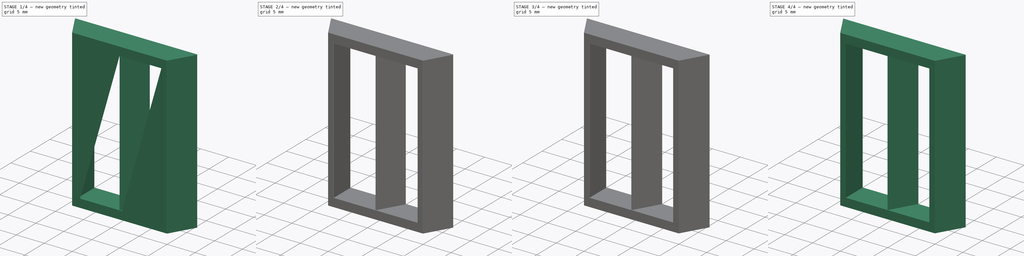
[diagram: build sequence overview — one tinted view per stage of 4, left to right]
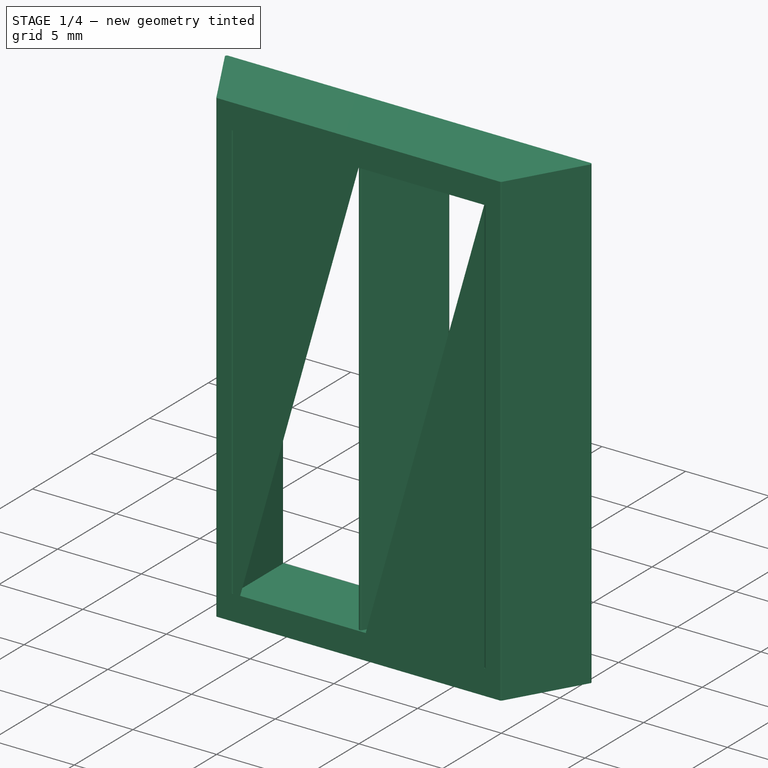
[diagram: stage 1 of 4 — iso view after this stage's code; geometry added in this stage tinted green]
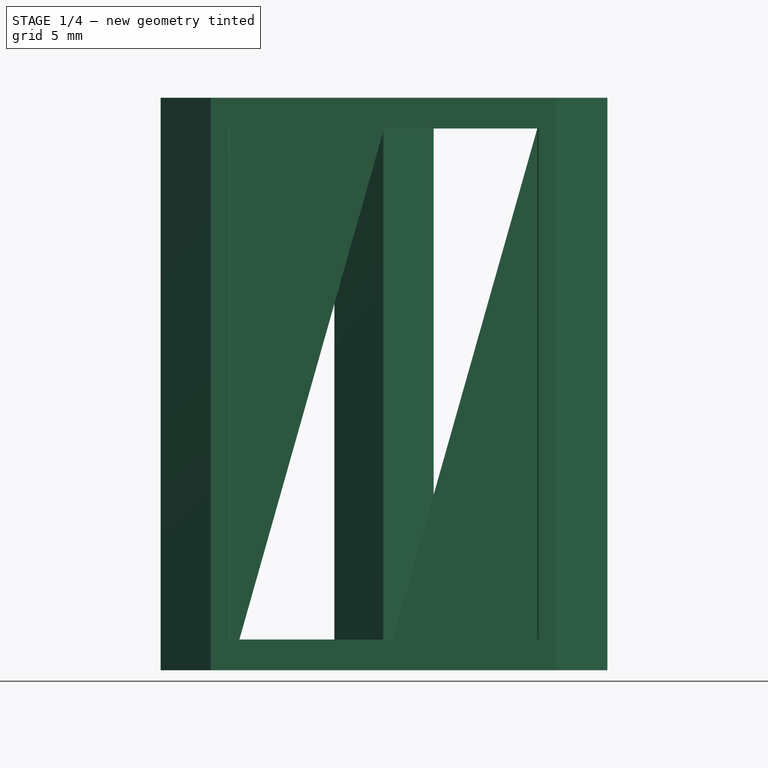
[diagram: stage 1 of 4 — front view after this stage's code; geometry added in this stage tinted green]
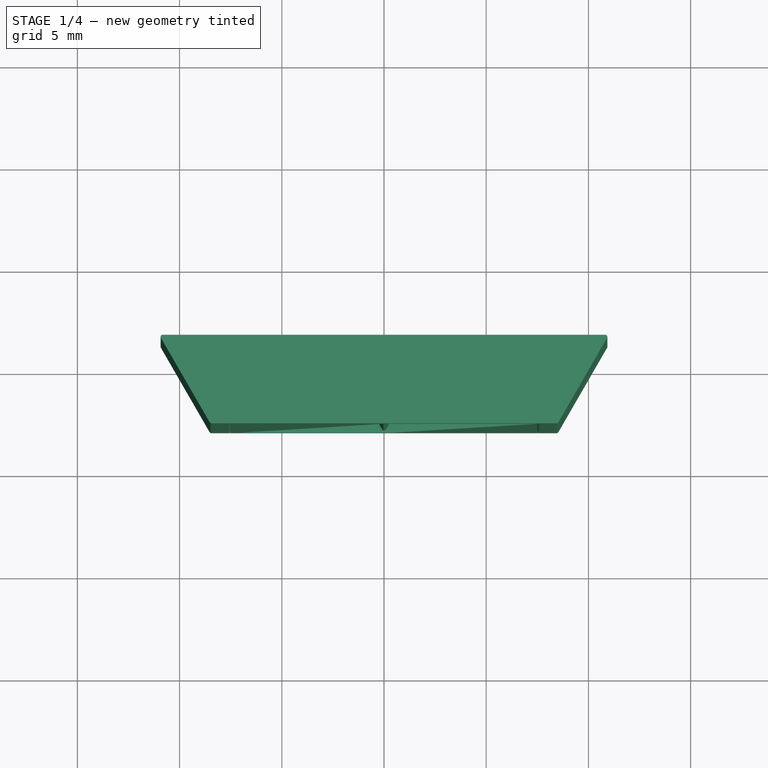
[diagram: stage 1 of 4 — top view after this stage's code; geometry added in this stage tinted green]
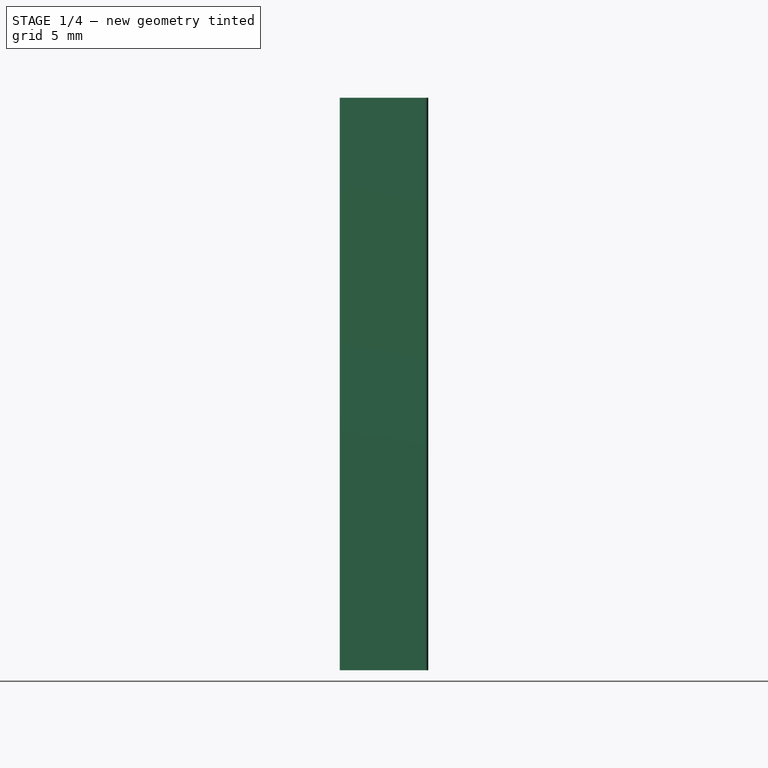
[diagram: stage 1 of 4 — right view after this stage's code; geometry added in this stage tinted green]
FCSTD DOCUMENT  (FreeCAD 0.18R16161 (Git))
Label: fixator01_new1_part
License: All rights reserved
LicenseURL: http://en.wikipedia.org/wiki/All_rights_reserved
objects: Part::Extrusion×6, Surface::Filling×4, Part::Feature×2, Sketcher::SketchObject×1, Part::Cut×1, Part::MultiFuse×1, Part::Fillet×1
note: 16 computed .brp shape members not serialized (recipe doc carries the construction recipe); baked Part::Feature solids carry a one-line shape summary decoded from their .brp

FEATURE [Part::Extrusion] Extrude004
  Base = -> Surface003
  Dir = (0,0,1)
  DirMode = 0
  FaceMakerClass = Part::FaceMakerBullseye
  LengthFwd = 26.5
  LengthRev = 0
  Solid = false
  Symmetric = false
FEATURE [Part::Feature] Fusion001
  shape: bbox 22.48 x 6.474 x 28 mm, 20 faces (baked)
FEATURE [Part::Fillet] Fillet
  Base = -> Fusion001
  Edges = 11 edges r=0.1: [Edge1,Edge2,Edge33,Edge34,Edge35,Edge37,Edge39,Edge41,Edge44,Edge56,Edge57]
FEATURE [Part::Feature] Fillet001
  shape: bbox 27.95 x 16.21 x 28 mm, 31 faces (baked)
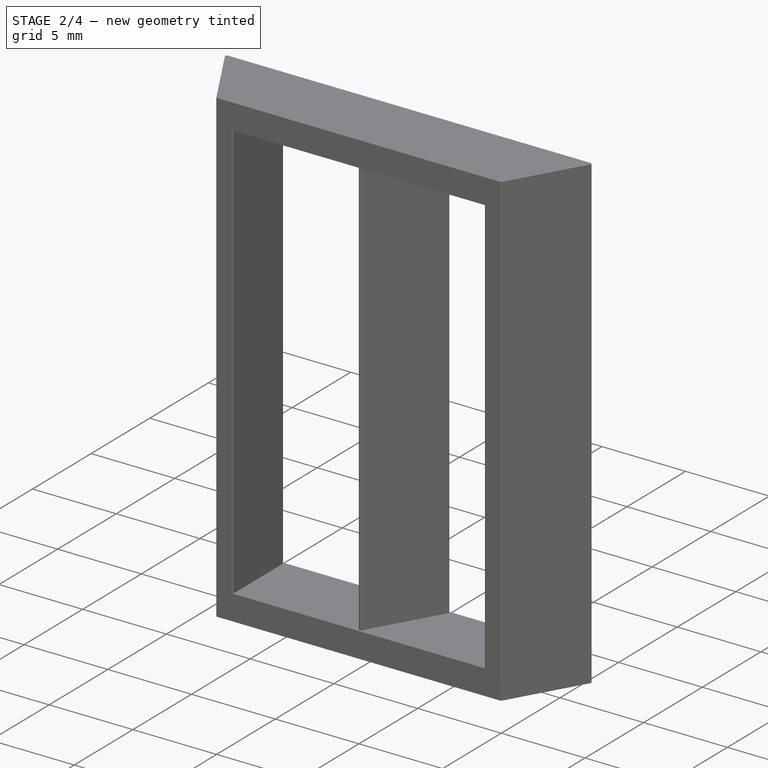
[diagram: stage 2 of 4 — iso view after this stage's code; geometry added in this stage tinted green]
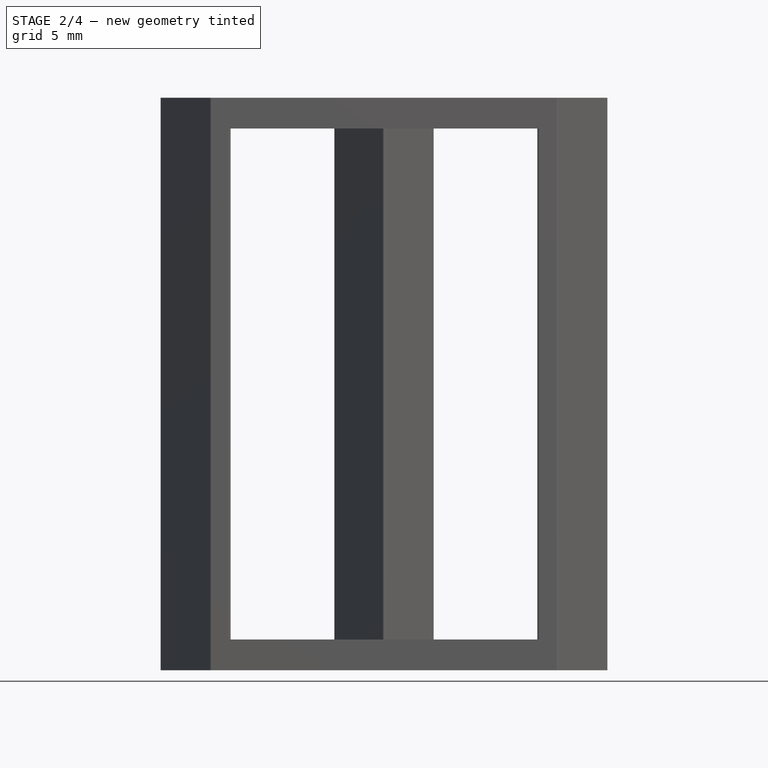
[diagram: stage 2 of 4 — front view after this stage's code; geometry added in this stage tinted green]
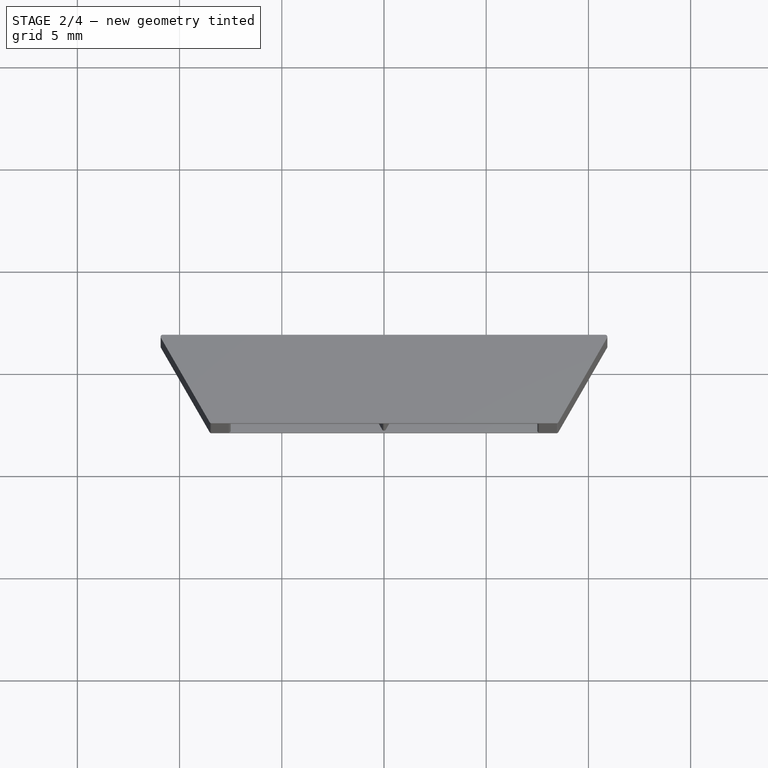
[diagram: stage 2 of 4 — top view after this stage's code; geometry added in this stage tinted green]
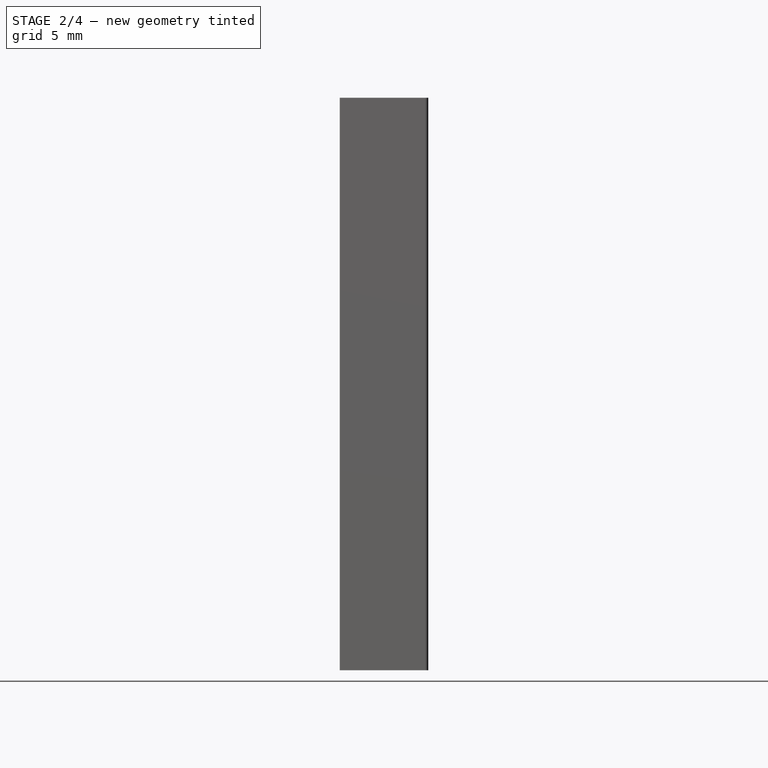
[diagram: stage 2 of 4 — right view after this stage's code; geometry added in this stage tinted green]
FEATURE [Part::Extrusion] Extrude003
  Base = -> Surface003
  Dir = (0,0,1)
  DirMode = 0
  FaceMakerClass = Part::FaceMakerBullseye
  LengthFwd = 28
  LengthRev = 0
  Solid = false
  Symmetric = false
FEATURE [Part::Cut] Cut
  Base = -> Extrude003
  Tool = -> Extrude004
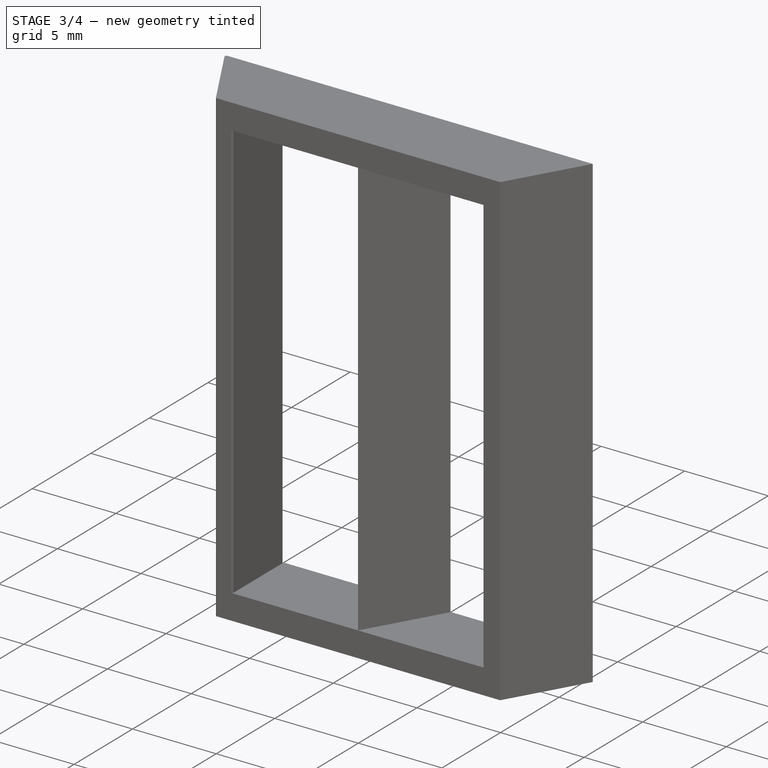
[diagram: stage 3 of 4 — iso view after this stage's code; geometry added in this stage tinted green]
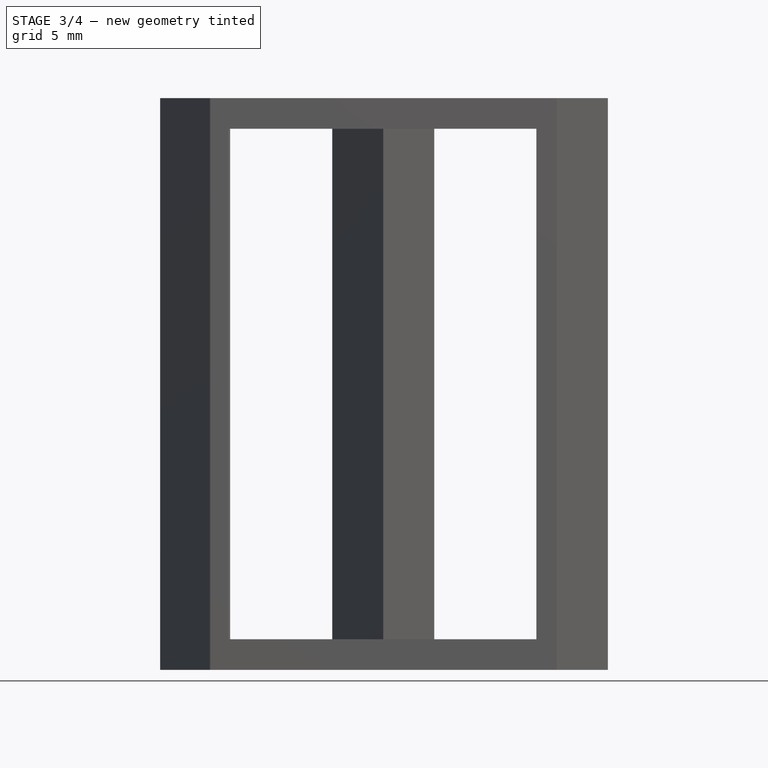
[diagram: stage 3 of 4 — front view after this stage's code; geometry added in this stage tinted green]
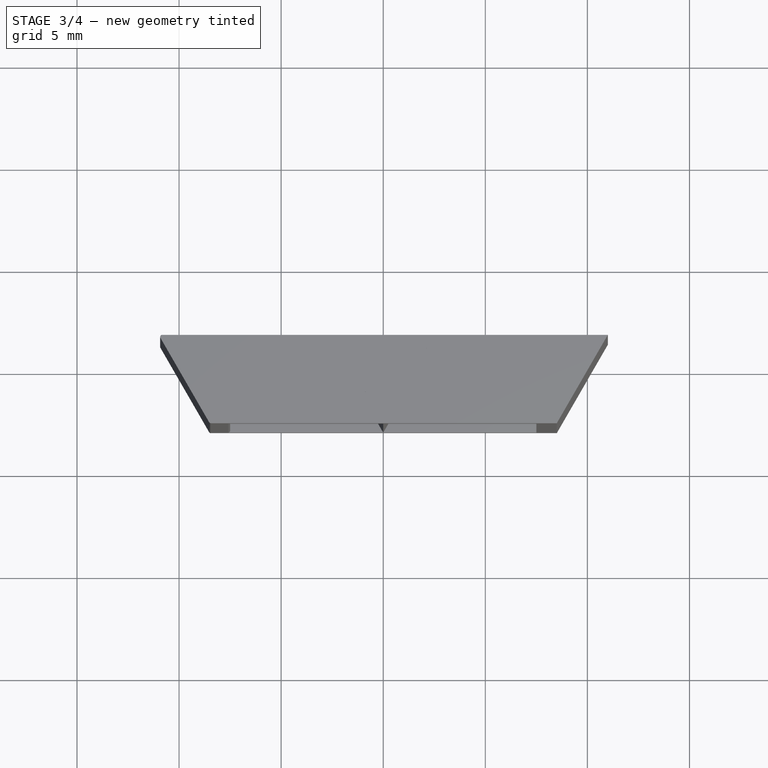
[diagram: stage 3 of 4 — top view after this stage's code; geometry added in this stage tinted green]
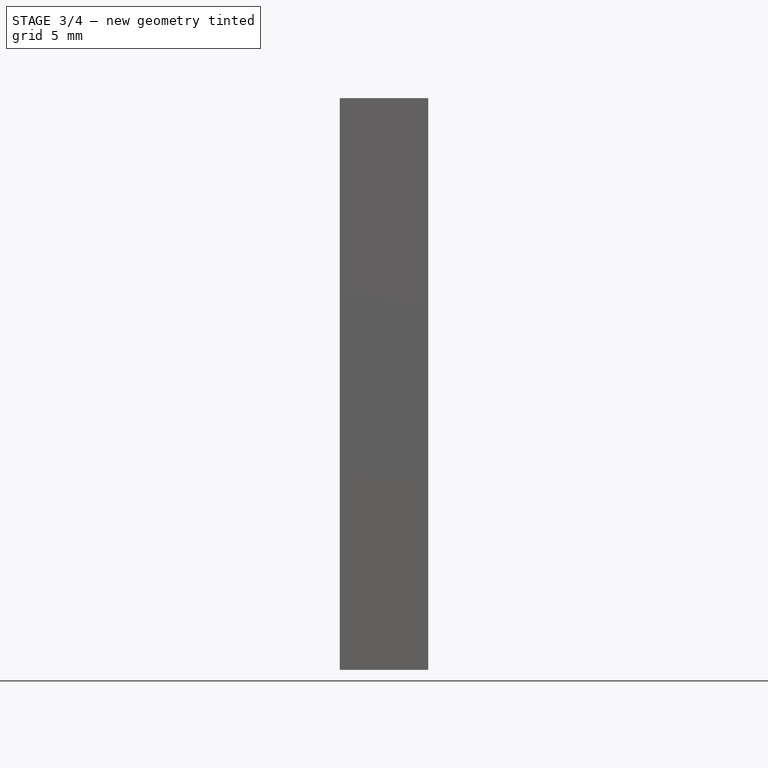
[diagram: stage 3 of 4 — right view after this stage's code; geometry added in this stage tinted green]
FEATURE [Part::Extrusion] Extrude001
  Base = -> Surface001
  Dir = (0,0,1)
  DirMode = 0
  FaceMakerClass = Part::FaceMakerBullseye
  LengthFwd = 28
  LengthRev = 0
  Solid = false
  Symmetric = false
FEATURE [Part::Extrusion] Extrude002
  Base = -> Surface002
  Dir = (0,0,1)
  DirMode = 0
  FaceMakerClass = Part::FaceMakerBullseye
  LengthFwd = 28
  LengthRev = 0
  Solid = false
  Symmetric = false
FEATURE [Part::Extrusion] Extrude005
  Base = -> Surface003
  Dir = (0,0,1)
  DirMode = 0
  FaceMakerClass = Part::FaceMakerBullseye
  LengthFwd = 1.5
  LengthRev = 0
  Solid = false
  Symmetric = false
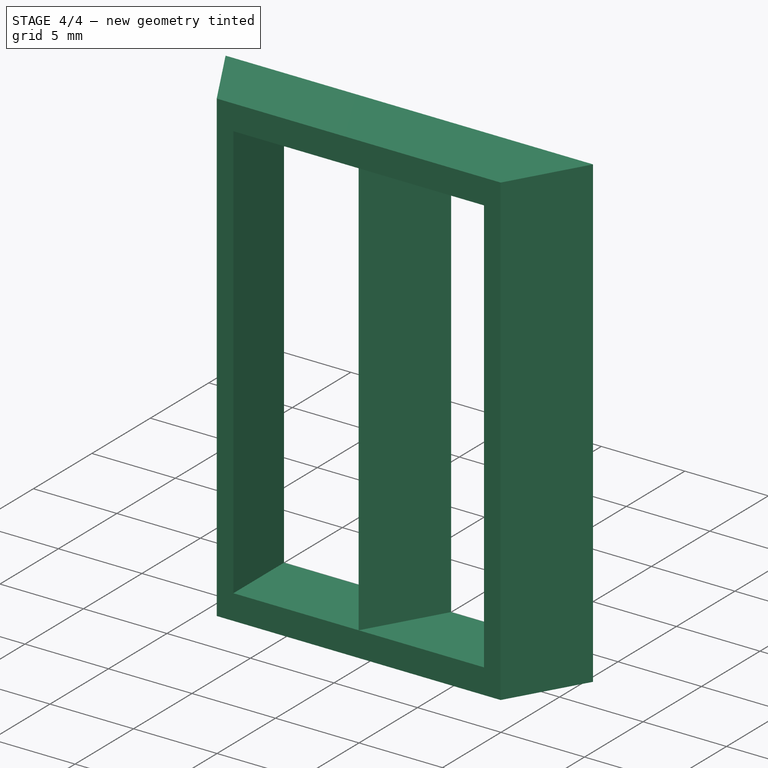
[diagram: stage 4 of 4 — iso view after this stage's code; geometry added in this stage tinted green]
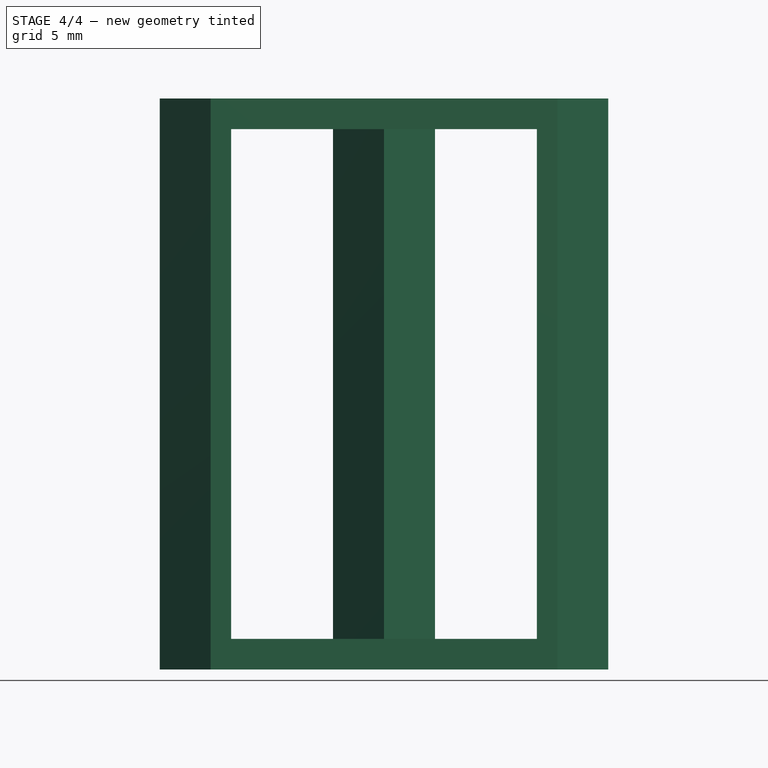
[diagram: stage 4 of 4 — front view after this stage's code; geometry added in this stage tinted green]
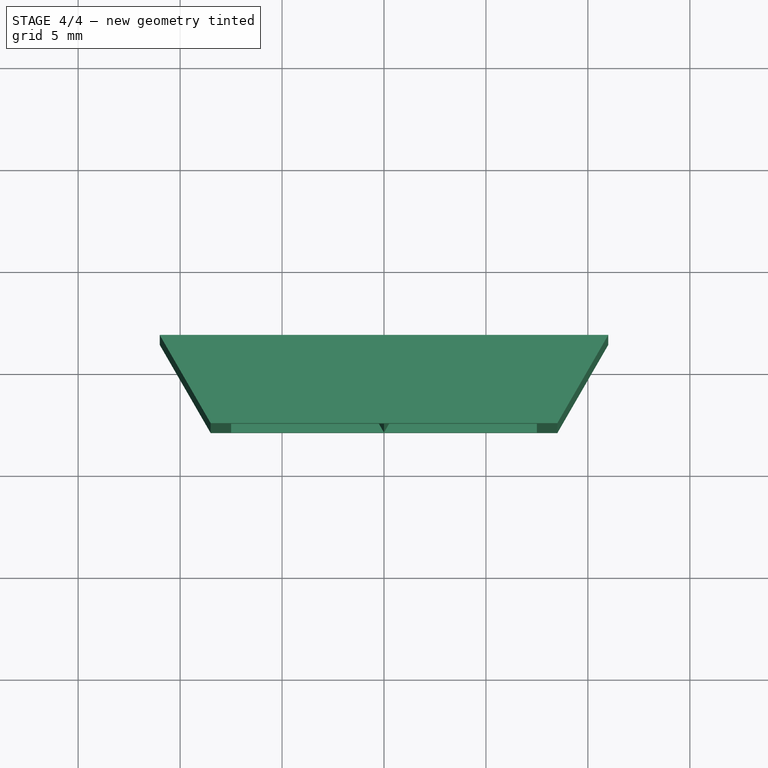
[diagram: stage 4 of 4 — top view after this stage's code; geometry added in this stage tinted green]
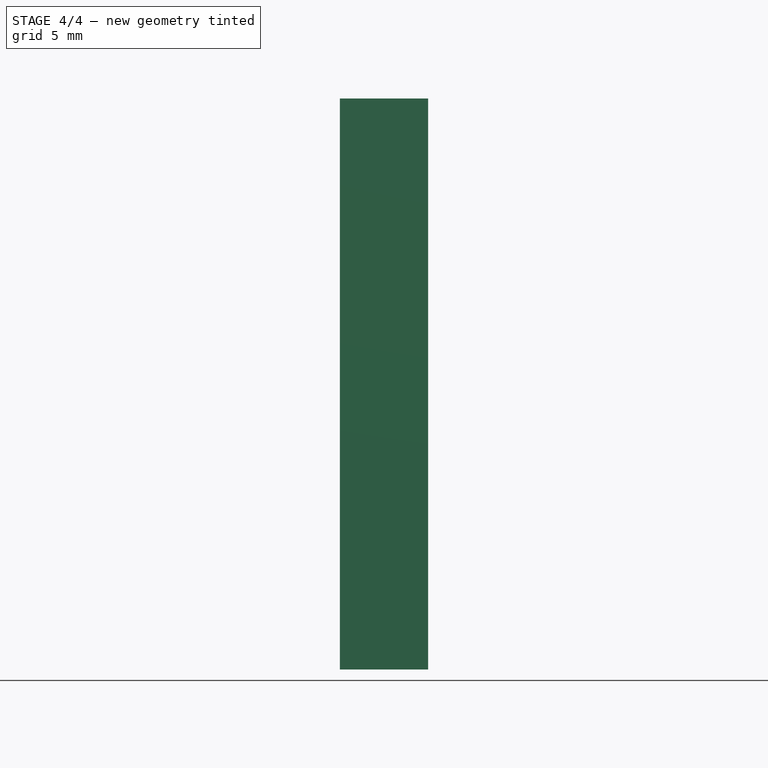
[diagram: stage 4 of 4 — right view after this stage's code; geometry added in this stage tinted green]
FEATURE [Sketcher::SketchObject] Sketch
  sketch-geometry (22):
    g0: LineSegment StartX=0 StartY=-2.88675 StartZ=0 EndX=2.5 EndY=1.44338 EndZ=0
    g1: LineSegment StartX=2.5 StartY=1.44338 StartZ=0 EndX=-2.5 EndY=1.44338 EndZ=0
    g2: LineSegment StartX=-2.5 StartY=1.44338 StartZ=0 EndX=0 EndY=-2.88675 EndZ=0
    g3: Circle [constr] CenterX=0 CenterY=0 CenterZ=0 NormalX=0 NormalY=0 NormalZ=1 AngleXU=0 Radius=2.88675
    g4: LineSegment StartX=2.5 StartY=1.44338 StartZ=0 EndX=7.5 EndY=1.44338 EndZ=0
    g5: LineSegment StartX=-7.5 StartY=1.44338 StartZ=0 EndX=-2.5 EndY=1.44338 EndZ=0
    g6: LineSegment StartX=0 StartY=-2.88675 StartZ=0 EndX=7.5 EndY=-2.88675 EndZ=0
    g7: LineSegment StartX=-7.5 StartY=-2.88675 StartZ=0 EndX=0 EndY=-2.88675 EndZ=0
    g8: LineSegment StartX=7.5 StartY=1.44338 StartZ=0 EndX=7.5 EndY=-2.88675 EndZ=0
    g9: LineSegment StartX=-7.5 StartY=1.44338 StartZ=0 EndX=-7.5 EndY=-2.88675 EndZ=0
    g10: LineSegment StartX=7.5 StartY=1.44338 StartZ=0 EndX=8.5 EndY=1.44338 EndZ=0
    g11: LineSegment StartX=8.5 StartY=1.44338 StartZ=0 EndX=8.5 EndY=-2.88675 EndZ=0
    g12: LineSegment StartX=8.5 StartY=-2.88675 StartZ=0 EndX=7.5 EndY=-2.88675 EndZ=0
    g13: LineSegment StartX=7.5 StartY=-2.88675 StartZ=0 EndX=7.5 EndY=1.44338 EndZ=0
    g14: LineSegment StartX=-8.5 StartY=1.44338 StartZ=0 EndX=-7.5 EndY=1.44338 EndZ=0
    g15: LineSegment StartX=-7.5 StartY=1.44338 StartZ=0 EndX=-7.5 EndY=-2.88675 EndZ=0
    g16: LineSegment StartX=-7.5 StartY=-2.88675 StartZ=0 EndX=-8.5 EndY=-2.88675 EndZ=0
    g17: LineSegment StartX=-8.5 StartY=-2.88675 StartZ=0 EndX=-8.5 EndY=1.44338 EndZ=0
    g18: LineSegment StartX=8.5 StartY=1.44338 StartZ=0 EndX=11 EndY=1.44338 EndZ=0
    g19: LineSegment StartX=8.5 StartY=-2.88675 StartZ=0 EndX=11 EndY=1.44338 EndZ=0
    g20: LineSegment StartX=-11 StartY=1.44338 StartZ=0 EndX=-8.5 EndY=1.44338 EndZ=0
    g21: LineSegment StartX=-11 StartY=1.44338 StartZ=0 EndX=-8.5 EndY=-2.88675 EndZ=0
  constraints (59):
    c: Coincident(g0,g1)
    c: Coincident(g1,g2)
    c: Coincident(g2,g0)
    c: Equal(g0,g1)
    c: Equal(g0,g2)
    c: PointOnObject(g0,g3)
    c: PointOnObject(g1,g3)
    c: PointOnObject(g2,g3)
    c: Coincident(g3,g-1)
    c: PointOnObject(g0,g-2)
    c: DistanceX(g1,g1) = 5
    c: Coincident(g4,g0)
    c: Coincident(g5,g1)
    c: Horizontal(g4)
    c: Horizontal(g5)
    c: Equal(g4,g5)
    c: DistanceX(g4,g4) = 5
    c: Coincident(g7,g0)
    c: Coincident(g6,g0)
    c: Horizontal(g6)
    c: Horizontal(g7)
    c: Coincident(g9,g5)
    c: Coincident(g8,g4)
    c: Vertical(g8)
    c: Vertical(g9)
    c: Coincident(g7,g9)
    c: Coincident(g6,g8)
    c: Coincident(g10,g11)
    c: Coincident(g11,g12)
    c: Coincident(g12,g13)
    c: Coincident(g13,g10)
    c: Horizontal(g10)
    c: Horizontal(g12)
    c: Vertical(g11)
    c: Vertical(g13)
    c: Coincident(g14,g15)
    c: Coincident(g15,g16)
    c: Coincident(g16,g17)
    c: Coincident(g17,g14)
    c: Horizontal(g14)
    c: Horizontal(g16)
    c: Vertical(g15)
    c: Vertical(g17)
    c: Coincident(g10,g4)
    c: Equal(g11,g8)
    c: DistanceX(g10,g10) = 1
    c: Coincident(g14,g5)
    c: Equal(g17,g9)
    c: Equal(g14,g10)
    c: Coincident(g18,g10)
    c: Coincident(g19,g11)
    c: Coincident(g19,g18)
    c: Horizontal(g18)
    c: Angle(g19,g11) = 0.523599
    c: Coincident(g20,g21)
    c: Coincident(g20,g14)
    c: Coincident(g21,g16)
    c: Horizontal(g20)
    c: Equal(g18,g20)
FEATURE [Surface::Filling] Surface
  Anisotropy = false
  BoundaryEdges = -> [Sketch]
  BoundaryOrder = [0,0,0,0,0]
  Degree = 3
  Iterations = 2
  MaximumDegree = 8
  MaximumSegments = 9
  PointsOnCurve = 15
  TolAngular = 0.01
  TolCurvature = 0.1
  Tolerance2d = 1e-05
  Tolerance3d = 0.0001
FEATURE [Surface::Filling] Surface001
  Anisotropy = false
  BoundaryEdges = -> [Sketch]
  BoundaryOrder = [0,0,0,0,0]
  Degree = 3
  Iterations = 2
  MaximumDegree = 8
  MaximumSegments = 9
  PointsOnCurve = 15
  TolAngular = 0.01
  TolCurvature = 0.1
  Tolerance2d = 1e-05
  Tolerance3d = 0.0001
FEATURE [Surface::Filling] Surface002
  Anisotropy = false
  BoundaryEdges = -> [Sketch]
  BoundaryOrder = [0,0,0]
  Degree = 3
  Iterations = 2
  MaximumDegree = 8
  MaximumSegments = 9
  PointsOnCurve = 15
  TolAngular = 0.01
  TolCurvature = 0.1
  Tolerance2d = 1e-05
  Tolerance3d = 0.0001
FEATURE [Surface::Filling] Surface003
  Anisotropy = false
  BoundaryEdges = -> [Sketch]
  BoundaryOrder = [0,0,0,0,0,0,0,0]
  Degree = 3
  Iterations = 2
  MaximumDegree = 8
  MaximumSegments = 9
  PointsOnCurve = 15
  TolAngular = 0.01
  TolCurvature = 0.1
  Tolerance2d = 1e-05
  Tolerance3d = 0.0001
FEATURE [Part::Extrusion] Extrude
  Base = -> Surface
  Dir = (0,0,1)
  DirMode = 0
  FaceMakerClass = Part::FaceMakerBullseye
  LengthFwd = 28
  LengthRev = 0
  Solid = false
  Symmetric = false
FEATURE [Part::MultiFuse] Fusion
  Shapes = -> [Extrude,Extrude002,Extrude005,Extrude001,Cut]
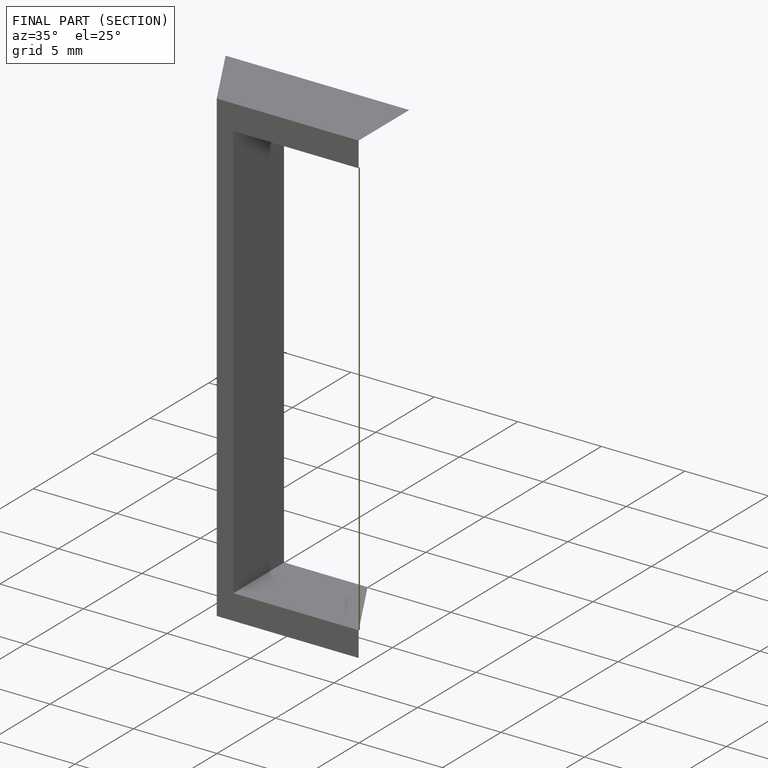
[diagram: finished part — half-section view (interior)]
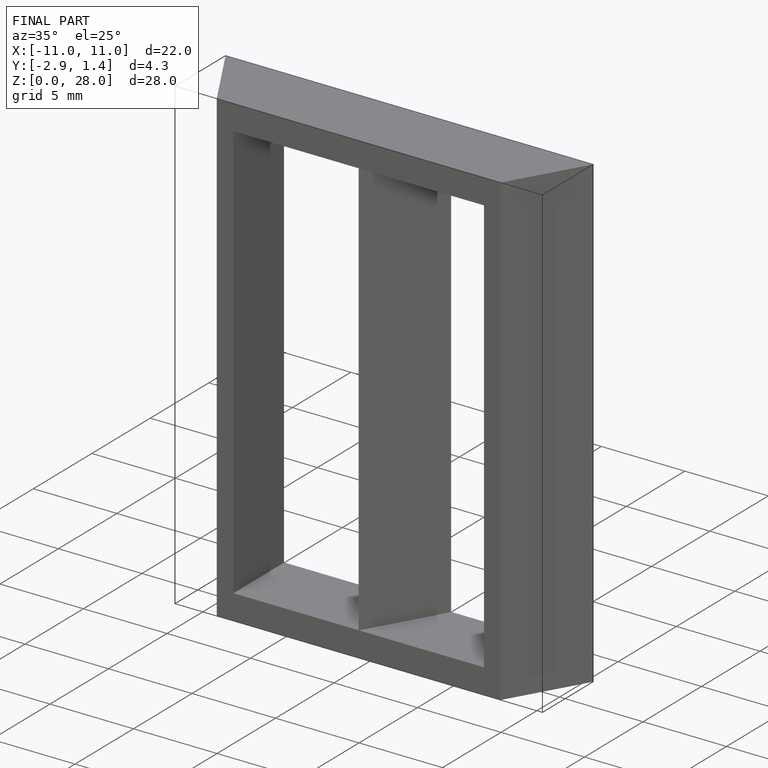
[diagram: finished part — iso view with bounding-box wireframe]
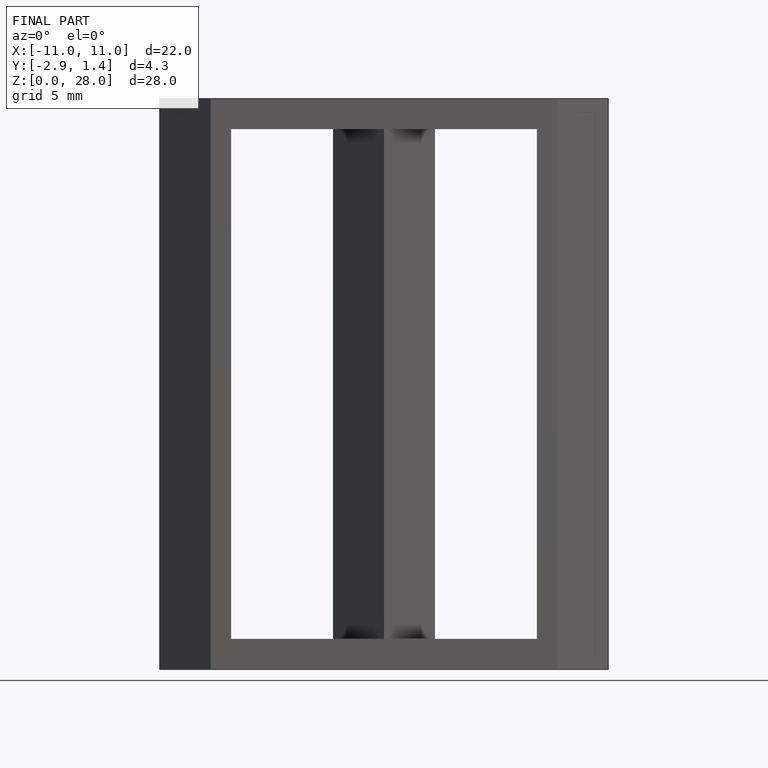
[diagram: finished part — front view with bounding-box wireframe]
